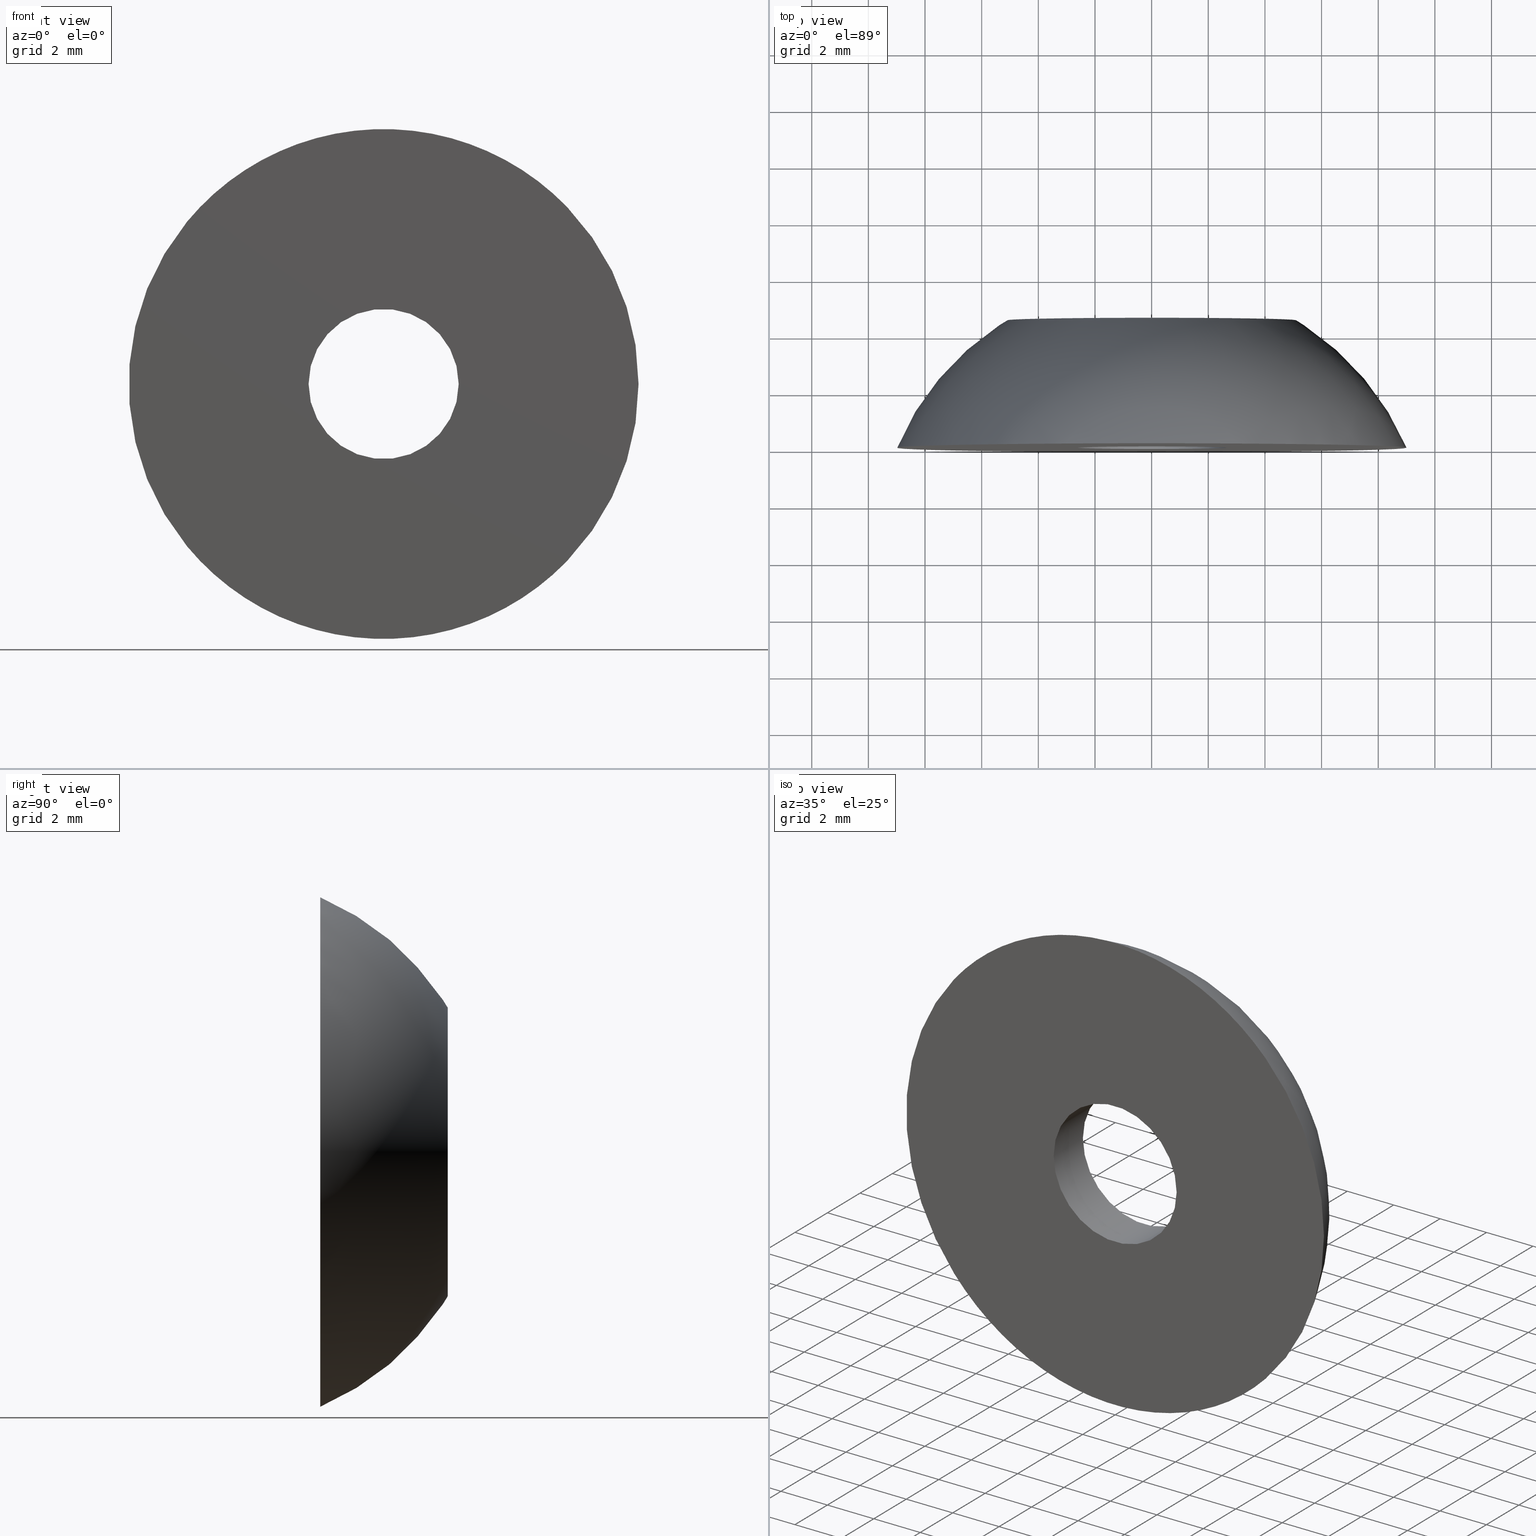
[diagram: canonical four-view strip — front | top / right | iso, engineering-drawing reading convention]
A machine part, canonical four-view strip (front | top / right | iso — engineering-drawing reading convention). The complete STEP part file that produces these views, byte-faithful:
ISO-10303-21;
HEADER;
/* Generated by software containing ST-Developer
 * from STEP Tools, Inc. (www.steptools.com) 
 */

FILE_DESCRIPTION(
/* description */ ('RONDELLA RAGGIATA M 5 RAL. 7039'),
/* implementation_level */ '2;1');

FILE_NAME(
/* name */ 
'Q:\\Catalogo\\2_Accessori Dierre\\Per Download Web\\CATALOGO ACCESSOR
I PER RIPARI\\PAGINA 73\\DROXX0000012.stp',
/* time_stamp */ '2018-02-06T15:30:58+01:00',
/* author */ ('fzagni'),
/* organization */ (''),
/* preprocessor_version */ 'ST-DEVELOPER v16.1',
/* originating_system */ 'Autodesk Inventor 2016',
/* authorisation */ '');

FILE_SCHEMA (('AUTOMOTIVE_DESIGN { 1 0 10303 214 3 1 1 }'));
ENDSEC;

DATA;
#10=MECHANICAL_DESIGN_GEOMETRIC_PRESENTATION_REPRESENTATION('',(#64,#65,
#66,#67,#68,#69),#128);
#11=SHAPE_REPRESENTATION_RELATIONSHIP('SRR','None',#137,#12);
#12=ADVANCED_BREP_SHAPE_REPRESENTATION('',(#13),#127);
#13=MANIFOLD_SOLID_BREP('Solido1',#75);
#14=SPHERICAL_SURFACE('',#82,9.79283411480048);
#15=CYLINDRICAL_SURFACE('',#80,5.1);
#16=CYLINDRICAL_SURFACE('',#86,2.65);
#17=FACE_BOUND('',#28,.T.);
#18=FACE_BOUND('',#30,.T.);
#19=FACE_BOUND('',#32,.T.);
#20=FACE_BOUND('',#34,.T.);
#21=FACE_BOUND('',#36,.T.);
#22=FACE_OUTER_BOUND('',#27,.T.);
#23=FACE_OUTER_BOUND('',#29,.T.);
#24=FACE_OUTER_BOUND('',#31,.T.);
#25=FACE_OUTER_BOUND('',#33,.T.);
#26=FACE_OUTER_BOUND('',#35,.T.);
#27=EDGE_LOOP('',(#52));
#28=EDGE_LOOP('',(#53));
#29=EDGE_LOOP('',(#54));
#30=EDGE_LOOP('',(#55));
#31=EDGE_LOOP('',(#56));
#32=EDGE_LOOP('',(#57));
#33=EDGE_LOOP('',(#58));
#34=EDGE_LOOP('',(#59));
#35=EDGE_LOOP('',(#60));
#36=EDGE_LOOP('',(#61));
#37=CIRCLE('',#78,5.1);
#38=CIRCLE('',#79,2.65);
#39=CIRCLE('',#81,5.1);
#40=CIRCLE('',#83,9.);
#41=CIRCLE('',#85,2.65);
#42=VERTEX_POINT('',#111);
#43=VERTEX_POINT('',#113);
#44=VERTEX_POINT('',#116);
#45=VERTEX_POINT('',#119);
#46=VERTEX_POINT('',#122);
#47=EDGE_CURVE('',#42,#42,#37,.T.);
#48=EDGE_CURVE('',#43,#43,#38,.T.);
#49=EDGE_CURVE('',#44,#44,#39,.T.);
#50=EDGE_CURVE('',#45,#45,#40,.T.);
#51=EDGE_CURVE('',#46,#46,#41,.T.);
#52=ORIENTED_EDGE('',*,*,#47,.F.);
#53=ORIENTED_EDGE('',*,*,#48,.T.);
#54=ORIENTED_EDGE('',*,*,#49,.F.);
#55=ORIENTED_EDGE('',*,*,#47,.T.);
#56=ORIENTED_EDGE('',*,*,#50,.F.);
#57=ORIENTED_EDGE('',*,*,#49,.T.);
#58=ORIENTED_EDGE('',*,*,#50,.T.);
#59=ORIENTED_EDGE('',*,*,#51,.F.);
#60=ORIENTED_EDGE('',*,*,#48,.F.);
#61=ORIENTED_EDGE('',*,*,#51,.T.);
#62=PLANE('',#77);
#63=PLANE('',#84);
#64=STYLED_ITEM('',(#147),#70);
#65=STYLED_ITEM('',(#147),#71);
#66=STYLED_ITEM('',(#147),#72);
#67=STYLED_ITEM('',(#147),#73);
#68=STYLED_ITEM('',(#147),#74);
#69=STYLED_ITEM('',(#146),#13);
#70=ADVANCED_FACE('',(#22,#17),#62,.T.);
#71=ADVANCED_FACE('',(#23,#18),#15,.F.);
#72=ADVANCED_FACE('',(#24,#19),#14,.T.);
#73=ADVANCED_FACE('',(#25,#20),#63,.T.);
#74=ADVANCED_FACE('',(#26,#21),#16,.F.);
#75=CLOSED_SHELL('',(#70,#71,#72,#73,#74));
#76=AXIS2_PLACEMENT_3D('placement',#109,#87,#88);
#77=AXIS2_PLACEMENT_3D('',#110,#89,#90);
#78=AXIS2_PLACEMENT_3D('',#112,#91,#92);
#79=AXIS2_PLACEMENT_3D('',#114,#93,#94);
#80=AXIS2_PLACEMENT_3D('',#115,#95,#96);
#81=AXIS2_PLACEMENT_3D('',#117,#97,#98);
#82=AXIS2_PLACEMENT_3D('',#118,#99,#100);
#83=AXIS2_PLACEMENT_3D('',#120,#101,#102);
#84=AXIS2_PLACEMENT_3D('',#121,#103,#104);
#85=AXIS2_PLACEMENT_3D('',#123,#105,#106);
#86=AXIS2_PLACEMENT_3D('',#124,#107,#108);
#87=DIRECTION('axis',(0.,0.,1.));
#88=DIRECTION('refdir',(1.,0.,0.));
#89=DIRECTION('center_axis',(0.,1.,0.));
#90=DIRECTION('ref_axis',(0.,0.,1.));
#91=DIRECTION('center_axis',(0.,-1.,0.));
#92=DIRECTION('ref_axis',(1.,0.,0.));
#93=DIRECTION('center_axis',(0.,-1.,0.));
#94=DIRECTION('ref_axis',(1.,0.,0.));
#95=DIRECTION('center_axis',(0.,-1.,0.));
#96=DIRECTION('ref_axis',(1.,0.,0.));
#97=DIRECTION('center_axis',(0.,-1.,0.));
#98=DIRECTION('ref_axis',(1.,0.,0.));
#99=DIRECTION('center_axis',(6.12323399573677E-17,0.,1.));
#100=DIRECTION('ref_axis',(1.,0.,0.));
#101=DIRECTION('center_axis',(0.,-1.,0.));
#102=DIRECTION('ref_axis',(1.,0.,0.));
#103=DIRECTION('center_axis',(0.,-1.,0.));
#104=DIRECTION('ref_axis',(0.,0.,-1.));
#105=DIRECTION('center_axis',(0.,-1.,0.));
#106=DIRECTION('ref_axis',(1.,0.,0.));
#107=DIRECTION('center_axis',(0.,-1.,0.));
#108=DIRECTION('ref_axis',(1.,0.,0.));
#109=CARTESIAN_POINT('',(0.,0.,0.));
#110=CARTESIAN_POINT('Origin',(3.875,1.8,0.));
#111=CARTESIAN_POINT('',(5.1,1.8,0.));
#112=CARTESIAN_POINT('Origin',(0.,1.8,0.));
#113=CARTESIAN_POINT('',(2.65,1.8,0.));
#114=CARTESIAN_POINT('Origin',(0.,1.8,0.));
#115=CARTESIAN_POINT('Origin',(0.,3.15,0.));
#116=CARTESIAN_POINT('',(5.1,4.5,0.));
#117=CARTESIAN_POINT('Origin',(0.,4.5,0.));
#118=CARTESIAN_POINT('Origin',(0.,-3.86,0.));
#119=CARTESIAN_POINT('',(9.,0.,0.));
#120=CARTESIAN_POINT('Origin',(0.,0.,0.));
#121=CARTESIAN_POINT('Origin',(5.825,0.,0.));
#122=CARTESIAN_POINT('',(2.65,0.,0.));
#123=CARTESIAN_POINT('Origin',(0.,0.,0.));
#124=CARTESIAN_POINT('Origin',(0.,0.9,0.));
#125=UNCERTAINTY_MEASURE_WITH_UNIT(LENGTH_MEASURE(0.01),#129,
'DISTANCE_ACCURACY_VALUE',
'Maximum model space distance between geometric entities at asserted c
onnectivities');
#126=UNCERTAINTY_MEASURE_WITH_UNIT(LENGTH_MEASURE(1.E-6),#129,
'DISTANCE_ACCURACY_VALUE',
'Maximum model space distance between geometric entities at asserted c
onnectivities');
#127=(
GEOMETRIC_REPRESENTATION_CONTEXT(3)
GLOBAL_UNCERTAINTY_ASSIGNED_CONTEXT((#125))
GLOBAL_UNIT_ASSIGNED_CONTEXT((#129,#132,#130))
REPRESENTATION_CONTEXT('','3D')
);
#128=(
GEOMETRIC_REPRESENTATION_CONTEXT(3)
GLOBAL_UNCERTAINTY_ASSIGNED_CONTEXT((#126))
GLOBAL_UNIT_ASSIGNED_CONTEXT((#129,#132,#130))
REPRESENTATION_CONTEXT('','3D')
);
#129=(
LENGTH_UNIT()
NAMED_UNIT(*)
SI_UNIT(.MILLI.,.METRE.)
);
#130=(
NAMED_UNIT(*)
SI_UNIT($,.STERADIAN.)
SOLID_ANGLE_UNIT()
);
#131=DIMENSIONAL_EXPONENTS(0.,0.,0.,0.,0.,0.,0.);
#132=(
CONVERSION_BASED_UNIT('degree',#134)
NAMED_UNIT(#131)
PLANE_ANGLE_UNIT()
);
#133=(
NAMED_UNIT(*)
PLANE_ANGLE_UNIT()
SI_UNIT($,.RADIAN.)
);
#134=PLANE_ANGLE_MEASURE_WITH_UNIT(PLANE_ANGLE_MEASURE(0.01745329252),#133);
#135=SHAPE_DEFINITION_REPRESENTATION(#136,#137);
#136=PRODUCT_DEFINITION_SHAPE('',$,#139);
#137=SHAPE_REPRESENTATION('',(#76),#127);
#138=PRODUCT_DEFINITION_CONTEXT('part definition',#143,'design');
#139=PRODUCT_DEFINITION('DROXX0000012','DROXX0000012',#140,#138);
#140=PRODUCT_DEFINITION_FORMATION('','D',#145);
#141=PRODUCT_RELATED_PRODUCT_CATEGORY('DROXX0000012','DROXX0000012',(#145));
#142=APPLICATION_PROTOCOL_DEFINITION('international standard',
'automotive_design',2009,#143);
#143=APPLICATION_CONTEXT(
'Core Data for Automotive Mechanical Design Process');
#144=PRODUCT_CONTEXT('part definition',#143,'mechanical');
#145=PRODUCT('DROXX0000012','DROXX0000012',$,(#144));
#146=PRESENTATION_STYLE_ASSIGNMENT((#148));
#147=PRESENTATION_STYLE_ASSIGNMENT((#149));
#148=SURFACE_STYLE_USAGE(.BOTH.,#150);
#149=SURFACE_STYLE_USAGE(.BOTH.,#151);
#150=SURFACE_SIDE_STYLE('',(#152));
#151=SURFACE_SIDE_STYLE('',(#153));
#152=SURFACE_STYLE_FILL_AREA(#154);
#153=SURFACE_STYLE_FILL_AREA(#155);
#154=FILL_AREA_STYLE('',(#156));
#155=FILL_AREA_STYLE('',(#157));
#156=FILL_AREA_STYLE_COLOUR('',#158);
#157=FILL_AREA_STYLE_COLOUR('',#159);
#158=COLOUR_RGB('',0.501960784313725,0.501960784313725,0.501960784313725);
#159=COLOUR_RGB('',0.317647058823529,0.305882352941176,0.254901960784314);
ENDSEC;
END-ISO-10303-21;
